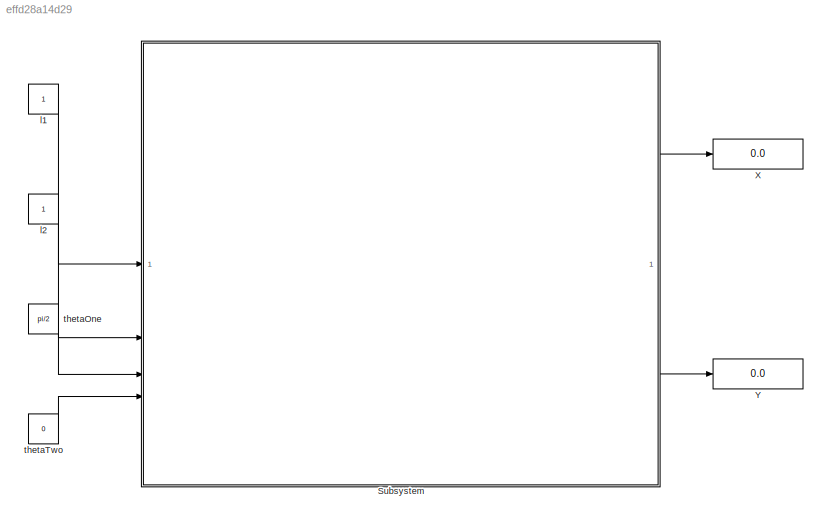
MODEL slx_effd28a14d29
KIND model
CONFIG AbsTol = auto
CONFIG EnableMultiTasking = off
CONFIG FixedStep = auto
CONFIG MaxStep = auto
CONFIG MinStep = auto
CONFIG RelTol = 1e-3
CONFIG SampleTimeConstraint = Unconstrained
CONFIG SolverName = VariableStepAuto
CONFIG StartTime = 0.0
CONFIG StopTime = 10.0
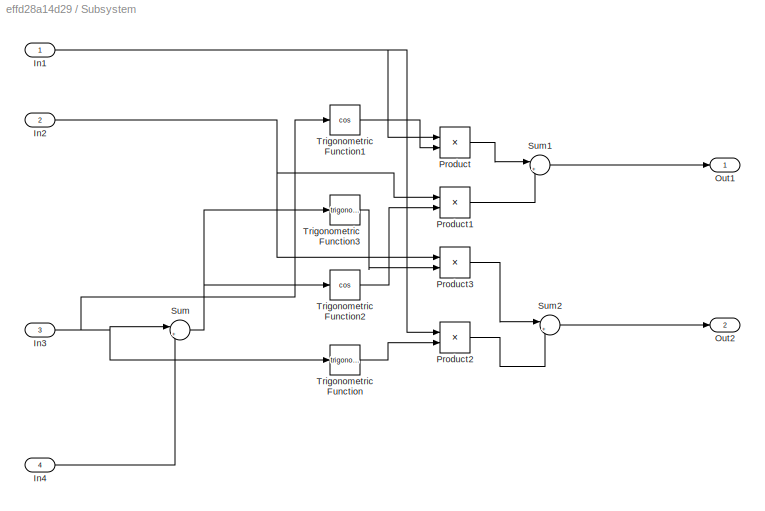
BLOCK [SubSystem] Subsystem
BLOCK [Inport] Subsystem/In1
BLOCK [Inport] Subsystem/In2
  Port = 2
BLOCK [Inport] Subsystem/In3
  Port = 3
BLOCK [Inport] Subsystem/In4
  Port = 4
BLOCK [Outport] Subsystem/Out1
BLOCK [Outport] Subsystem/Out2
  Port = 2
BLOCK [Product] Subsystem/Product
BLOCK [Product] Subsystem/Product1
BLOCK [Product] Subsystem/Product2
BLOCK [Product] Subsystem/Product3
BLOCK [Sum] Subsystem/Sum
  Inputs = |++
BLOCK [Sum] Subsystem/Sum1
  Inputs = |++
BLOCK [Sum] Subsystem/Sum2
  Inputs = |++
BLOCK [Trigonometry] Subsystem/Trigonometric Function
BLOCK [Trigonometry] Subsystem/Trigonometric Function1
  Operator = cos
BLOCK [Trigonometry] Subsystem/Trigonometric Function2
  Operator = cos
BLOCK [Trigonometry] Subsystem/Trigonometric Function3
BLOCK [Display] X
  Decimation = 1
BLOCK [Display] Y
  Decimation = 1
BLOCK [Constant] l1
BLOCK [Constant] l2
BLOCK [Constant] thetaOne
  Value = pi/2
BLOCK [Constant] thetaTwo
  Value = 0
NET Subsystem/In1:1 -> Subsystem/Product2:1, Subsystem/Product:1
NET Subsystem/In2:1 -> Subsystem/Product1:1, Subsystem/Product3:1
NET Subsystem/In3:1 -> Subsystem/Sum:1, Subsystem/Trigonometric Function1:1, Subsystem/Trigonometric Function:1
LINE Subsystem/In4:1 -> Subsystem/Sum:2
LINE Subsystem/Product1:1 -> Subsystem/Sum1:2
LINE Subsystem/Product2:1 -> Subsystem/Sum2:2
LINE Subsystem/Product3:1 -> Subsystem/Sum2:1
LINE Subsystem/Product:1 -> Subsystem/Sum1:1
LINE Subsystem/Sum1:1 -> Subsystem/Out1:1
LINE Subsystem/Sum2:1 -> Subsystem/Out2:1
NET Subsystem/Sum:1 -> Subsystem/Trigonometric Function2:1, Subsystem/Trigonometric Function3:1
LINE Subsystem/Trigonometric Function1:1 -> Subsystem/Product:2
LINE Subsystem/Trigonometric Function2:1 -> Subsystem/Product1:2
LINE Subsystem/Trigonometric Function3:1 -> Subsystem/Product3:2
LINE Subsystem/Trigonometric Function:1 -> Subsystem/Product2:2
LINE Subsystem:1 -> X:1
LINE Subsystem:2 -> Y:1
LINE l1:1 -> Subsystem:1
LINE l2:1 -> Subsystem:2
LINE thetaOne:1 -> Subsystem:3
LINE thetaTwo:1 -> Subsystem:4
note: NET lines group one-source signal fan-out (src -> all destinations, sorted); 1:1 wires keep LINE
